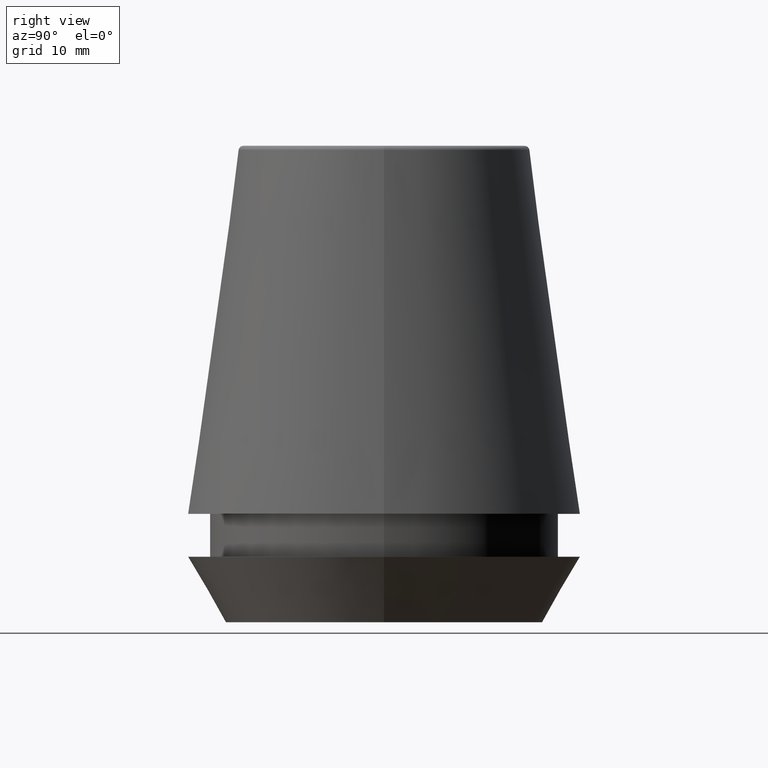
[diagram: clean part render]
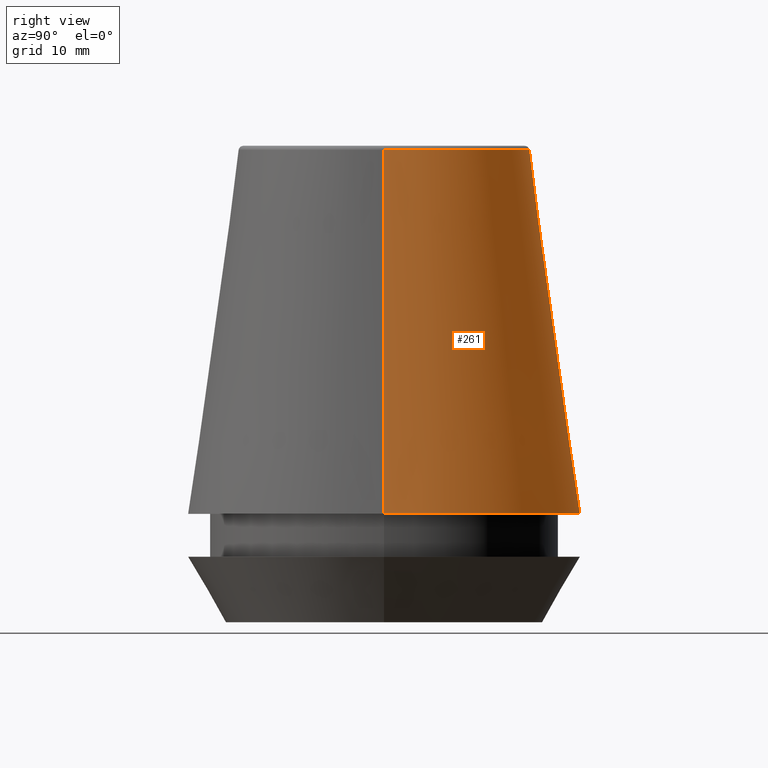
[diagram: same view with one face highlighted and labeled with its STEP entity id]
A machine part, right view. The second image highlights one B-rep face of the part: STEP entity #261.
In plain terms, the highlighted conical surface has half-angle 8 deg.
Its self-contained STEP definition (entity closure, byte-faithful):
#22 = DIRECTION ( 'NONE',  ( 1.000000000000000000, 0.0000000000000000000, 0.0000000000000000000 ) ) ;
#29 = CONICAL_SURFACE ( 'NONE', #251, 16.50032537154048700, 0.1396263401595395900 ) ;
#31 = EDGE_LOOP ( 'NONE', ( #373, #138, #346, #285 ) ) ;
#33 = VERTEX_POINT ( 'NONE', #245 ) ;
#45 = VERTEX_POINT ( 'NONE', #330 ) ;
#88 = CIRCLE ( 'NONE', #223, 16.50032537154048700 ) ;
#97 = DIRECTION ( 'NONE',  ( -1.000000000000000000, 0.0000000000000000000, 0.0000000000000000000 ) ) ;
#108 = VERTEX_POINT ( 'NONE', #279 ) ;
#109 = VECTOR ( 'NONE', #125, 1000.000000000000000 ) ;
#125 = DIRECTION ( 'NONE',  ( -0.1391731009600586900, 0.0000000000000000000, -0.9902680687415712500 ) ) ;
#131 = DIRECTION ( 'NONE',  ( 0.0000000000000000000, 0.0000000000000000000, -1.000000000000000000 ) ) ;
#138 = ORIENTED_EDGE ( 'NONE', *, *, #289, .T. ) ;
#160 = CARTESIAN_POINT ( 'NONE',  ( 0.0000000000000000000, 0.0000000000000000000, 39.65566924038402900 ) ) ;
#161 = CARTESIAN_POINT ( 'NONE',  ( 16.50032537154048700, 2.020707065114692300E-015, 9.099999999999997900 ) ) ;
#172 = VECTOR ( 'NONE', #225, 1000.000000000000000 ) ;
#175 = EDGE_CURVE ( 'NONE', #45, #33, #350, .T. ) ;
#190 = DIRECTION ( 'NONE',  ( 1.000000000000000000, 0.0000000000000000000, 0.0000000000000000000 ) ) ;
#194 = DIRECTION ( 'NONE',  ( -0.0000000000000000000, -0.0000000000000000000, 1.000000000000000000 ) ) ;
#204 = FACE_OUTER_BOUND ( 'NONE', #31, .T. ) ;
#221 = CARTESIAN_POINT ( 'NONE',  ( -16.50032537154048700, 0.0000000000000000000, 9.099999999999997900 ) ) ;
#223 = AXIS2_PLACEMENT_3D ( 'NONE', #380, #194, #22 ) ;
#225 = DIRECTION ( 'NONE',  ( 0.1391731009600586900, 1.704378926181473100E-017, -0.9902680687415712500 ) ) ;
#245 = CARTESIAN_POINT ( 'NONE',  ( -16.50032537154048700, 0.0000000000000000000, 9.099999999999997900 ) ) ;
#251 = AXIS2_PLACEMENT_3D ( 'NONE', #320, #131, #97 ) ;
#255 = EDGE_CURVE ( 'NONE', #300, #45, #288, .T. ) ;
#261 = ADVANCED_FACE ( 'NONE', ( #204 ), #29, .T. ) ;
#263 = AXIS2_PLACEMENT_3D ( 'NONE', #160, #376, #190 ) ;
#265 = LINE ( 'NONE', #161, #172 ) ;
#279 = CARTESIAN_POINT ( 'NONE',  ( 16.50032537154048700, 2.020707065114692300E-015, 9.099999999999997900 ) ) ;
#285 = ORIENTED_EDGE ( 'NONE', *, *, #175, .F. ) ;
#288 = CIRCLE ( 'NONE', #263, 12.20600611160694300 ) ;
#289 = EDGE_CURVE ( 'NONE', #300, #108, #265, .T. ) ;
#300 = VERTEX_POINT ( 'NONE', #321 ) ;
#320 = CARTESIAN_POINT ( 'NONE',  ( 0.0000000000000000000, 0.0000000000000000000, 9.099999999999997900 ) ) ;
#321 = CARTESIAN_POINT ( 'NONE',  ( 12.20600611160694300, 1.757755848304969800E-015, 39.65566924038402900 ) ) ;
#326 = EDGE_CURVE ( 'NONE', #108, #33, #88, .T. ) ;
#330 = CARTESIAN_POINT ( 'NONE',  ( -12.20600611160694300, 0.0000000000000000000, 39.65566924038402900 ) ) ;
#346 = ORIENTED_EDGE ( 'NONE', *, *, #326, .T. ) ;
#350 = LINE ( 'NONE', #221, #109 ) ;
#373 = ORIENTED_EDGE ( 'NONE', *, *, #255, .F. ) ;
#376 = DIRECTION ( 'NONE',  ( -0.0000000000000000000, -0.0000000000000000000, 1.000000000000000000 ) ) ;
#380 = CARTESIAN_POINT ( 'NONE',  ( 0.0000000000000000000, 0.0000000000000000000, 9.099999999999997900 ) ) ;